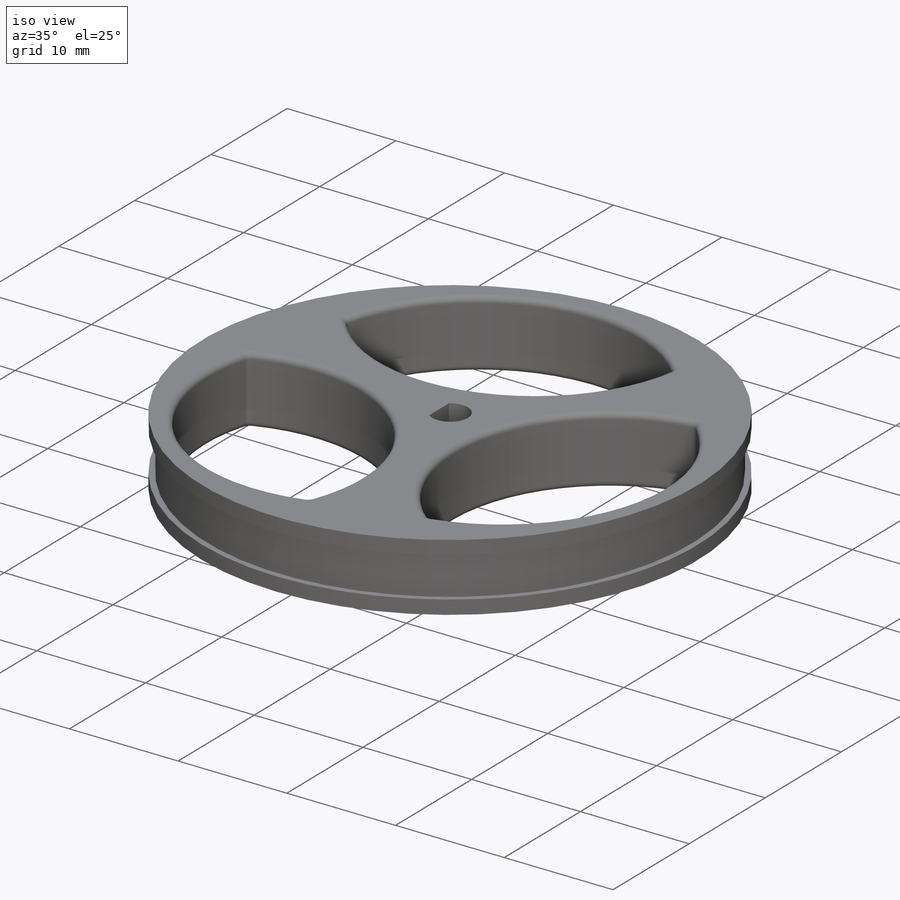
[diagram: iso view]
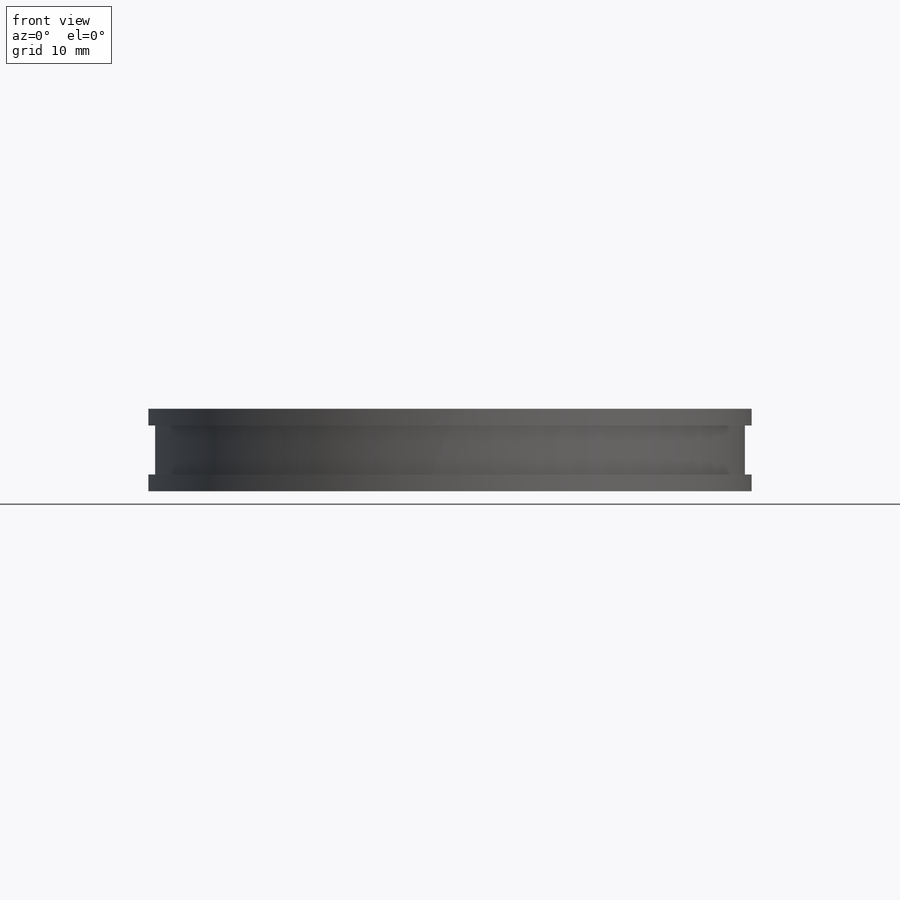
[diagram: front view]
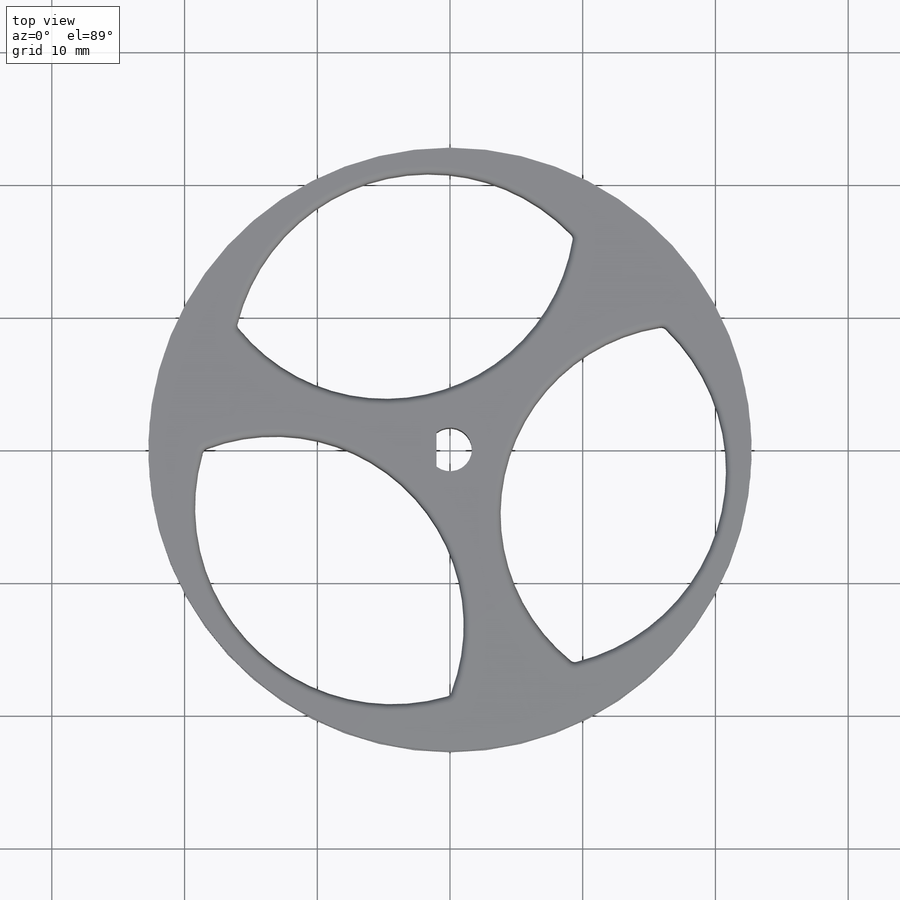
[diagram: top view]
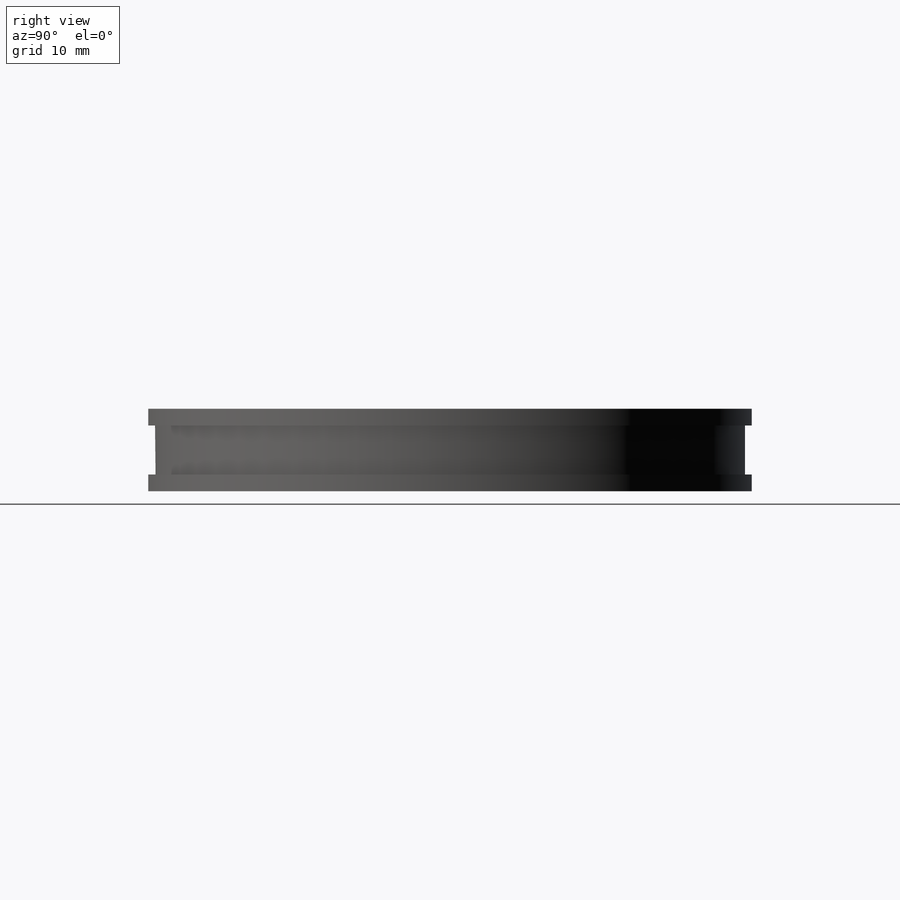
[diagram: right view]
SOLIDWORKS PART (.sldprt)
format: sldprt  version: not decoded by parser v0  size: 301,568 bytes
history: native  units: mm
features: sketch x5, extrude x3, cut_extrude x2, material x1, fillet x1, pattern_circular x1 (+13 scaffold rows collapsed)
feature tree (26):
  scaffold x13  (default folders/planes/origin — collapsed)
  material  "Material <not specified>"
  sketch  "Sketch2"  dims[D1=44.45mm D2=44.958mm]
  extrude  "Boss-Extrude1"  Depth=3.683mm
  sketch  "Sketch3"  dims[D1=45.466mm]
  extrude  "Boss-Extrude2"  Depth=1.27mm
  sketch  "Sketch4"  dims[D1=45.466mm D2=45.466mm]
  extrude  "Boss-Extrude3"  Depth=1.27mm
  sketch  "Sketch5"  dims[D1=3.302mm D2=2.667mm]
  cut_extrude  "Cut-Extrude1"  [1 undecoded]
  sketch  "Sketch9"
  cut_extrude  "Cut-Extrude3"  [1 undecoded]
  fillet  "Fillet5"  Radius=0.508mm
  pattern_circular  "CirPattern3"  Count=3 Angle=360deg
decode coverage: 9 of 12 modeling features carry decoded parameters
note: 2 parameter values undecoded
note: suppression state not decoded; provenance and decode notes live in map.json
